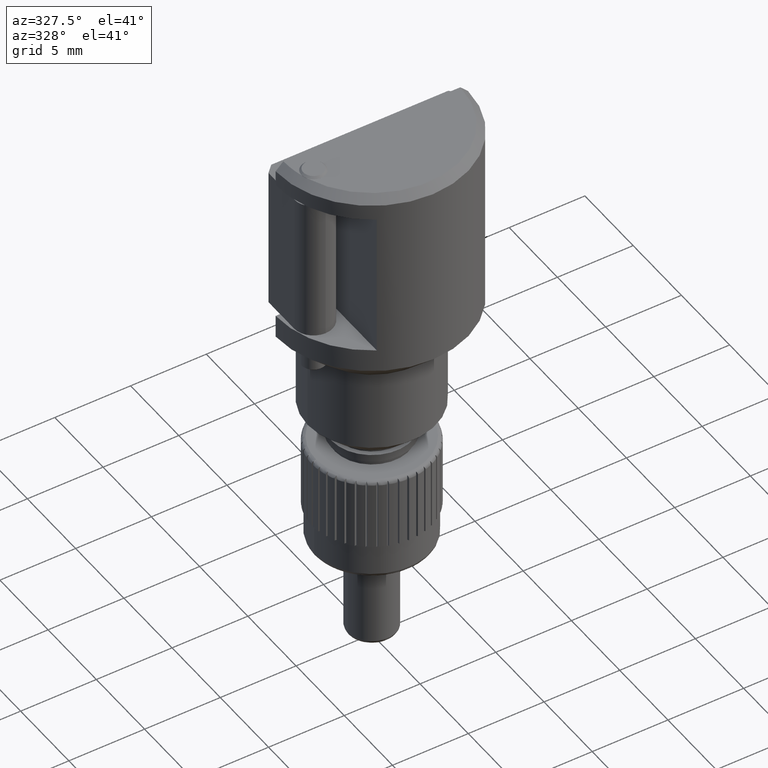
[diagram: clean part render]
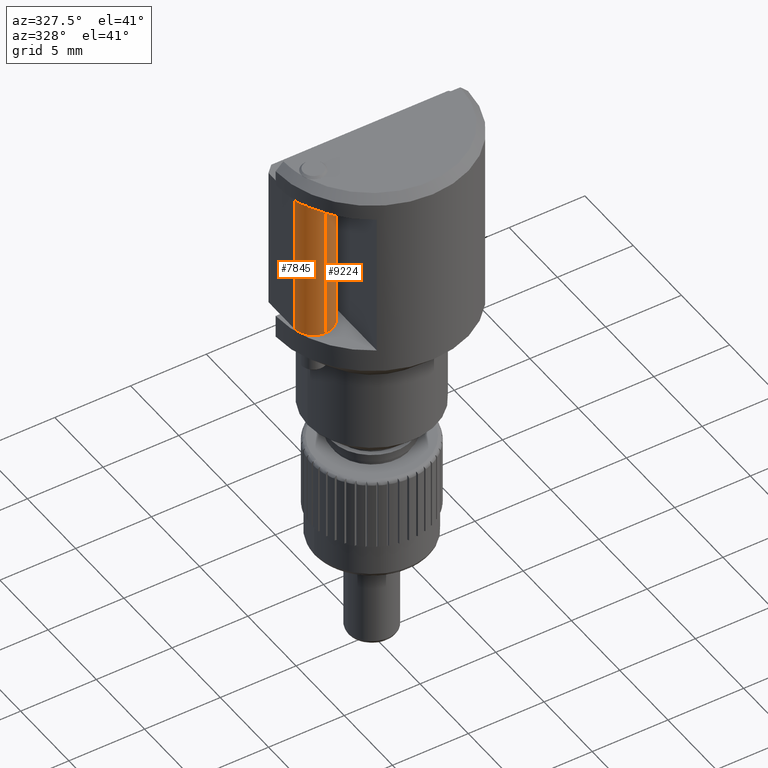
[diagram: same view with one multi-face feature highlighted, each face labeled with its STEP entity id]
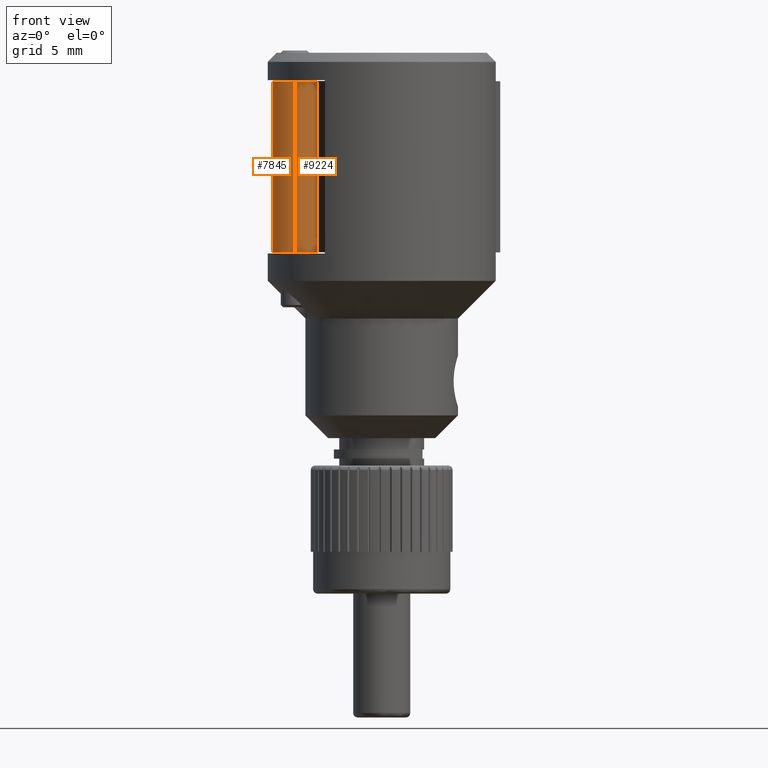
[diagram: same view with one multi-face feature highlighted, each face labeled with its STEP entity id]
A machine part, auxiliary view. The highlighted faces form ONE feature: a constant-radius fillet chain: 2 tangent blend faces with common blend radius 1.27 mm. The faces share edges in the B-rep.
A second angle (front view) of the same feature is appended — it is thin or edge-on in the first view.
Their STEP definitions:
[1] entity #9224 (Cylinder):
#1884 = ORIENTED_EDGE ( 'NONE', *, *, #6429, .F. ) ;
#1924 = EDGE_LOOP ( 'NONE', ( #1973, #1884, #4818, #6220 ) ) ;
#1973 = ORIENTED_EDGE ( 'NONE', *, *, #8939, .F. ) ;
#2120 = AXIS2_PLACEMENT_3D ( 'NONE', #6759, #5254, #2218 ) ;
#2174 = CYLINDRICAL_SURFACE ( 'NONE', #9515, 0.05000000000000001000 ) ;
#2218 = DIRECTION ( 'NONE',  ( -1.000000000000000000, 0.0000000000000000000, 0.0000000000000000000 ) ) ;
#2877 = LINE ( 'NONE', #4825, #4183 ) ;
#2979 = CARTESIAN_POINT ( 'NONE',  ( -0.1899999999999999700, -0.1099999999999999900, 0.6893110236220474400 ) ) ;
#3901 = CARTESIAN_POINT ( 'NONE',  ( -0.1399999999999999900, -0.05999999999999990800, 0.6893110236220474400 ) ) ;
#4127 = CARTESIAN_POINT ( 'NONE',  ( -0.1399999999999999900, -0.05999999999999990800, 0.3143110236220473800 ) ) ;
#4183 = VECTOR ( 'NONE', #7057, 39.37007874015748100 ) ;
#4441 = DIRECTION ( 'NONE',  ( -0.0000000000000000000, -0.0000000000000000000, 1.000000000000000000 ) ) ;
#4818 = ORIENTED_EDGE ( 'NONE', *, *, #5738, .F. ) ;
#4825 = CARTESIAN_POINT ( 'NONE',  ( -0.1399999999999999900, -0.05999999999999990800, 0.6893110236220474400 ) ) ;
#5254 = DIRECTION ( 'NONE',  ( -0.0000000000000000000, -0.0000000000000000000, 1.000000000000000000 ) ) ;
#5553 = AXIS2_PLACEMENT_3D ( 'NONE', #9485, #8753, #6359 ) ;
#5700 = CARTESIAN_POINT ( 'NONE',  ( -0.1899999999999999700, -0.05999999999999997700, 0.6893110236220474400 ) ) ;
#5738 = EDGE_CURVE ( 'NONE', #6929, #8855, #6919, .T. ) ;
#6009 = VERTEX_POINT ( 'NONE', #4127 ) ;
#6220 = ORIENTED_EDGE ( 'NONE', *, *, #7939, .F. ) ;
#6359 = DIRECTION ( 'NONE',  ( -1.000000000000000000, 0.0000000000000000000, 0.0000000000000000000 ) ) ;
#6429 = EDGE_CURVE ( 'NONE', #8855, #7857, #7823, .T. ) ;
#6460 = DIRECTION ( 'NONE',  ( 0.0000000000000000000, 0.0000000000000000000, -1.000000000000000000 ) ) ;
#6759 = CARTESIAN_POINT ( 'NONE',  ( -0.1899999999999999700, -0.05999999999999997700, 0.6893110236220474400 ) ) ;
#6919 = LINE ( 'NONE', #2979, #7385 ) ;
#6929 = VERTEX_POINT ( 'NONE', #7630 ) ;
#6935 = FACE_OUTER_BOUND ( 'NONE', #1924, .T. ) ;
#7057 = DIRECTION ( 'NONE',  ( 0.0000000000000000000, 0.0000000000000000000, -1.000000000000000000 ) ) ;
#7216 = DIRECTION ( 'NONE',  ( -1.000000000000000000, 0.0000000000000000000, 0.0000000000000000000 ) ) ;
#7385 = VECTOR ( 'NONE', #4441, 39.37007874015748100 ) ;
#7630 = CARTESIAN_POINT ( 'NONE',  ( -0.1899999999999999700, -0.1099999999999999900, 0.3143110236220473800 ) ) ;
#7823 = CIRCLE ( 'NONE', #2120, 0.05000000000000001000 ) ;
#7857 = VERTEX_POINT ( 'NONE', #3901 ) ;
#7909 = CIRCLE ( 'NONE', #5553, 0.05000000000000001000 ) ;
#7939 = EDGE_CURVE ( 'NONE', #6009, #6929, #7909, .T. ) ;
#8455 = CARTESIAN_POINT ( 'NONE',  ( -0.1899999999999999700, -0.1099999999999999900, 0.6893110236220474400 ) ) ;
#8753 = DIRECTION ( 'NONE',  ( 0.0000000000000000000, 0.0000000000000000000, -1.000000000000000000 ) ) ;
#8855 = VERTEX_POINT ( 'NONE', #8455 ) ;
#8939 = EDGE_CURVE ( 'NONE', #7857, #6009, #2877, .T. ) ;
#9224 = ADVANCED_FACE ( 'NONE', ( #6935 ), #2174, .T. ) ;
#9485 = CARTESIAN_POINT ( 'NONE',  ( -0.1899999999999999700, -0.05999999999999997700, 0.3143110236220473800 ) ) ;
#9515 = AXIS2_PLACEMENT_3D ( 'NONE', #5700, #6460, #7216 ) ;
[2] entity #7845 (Cylinder):
#175 = EDGE_CURVE ( 'NONE', #6929, #6110, #712, .T. ) ;
#485 = EDGE_CURVE ( 'NONE', #6110, #5731, #1094, .T. ) ;
#712 = CIRCLE ( 'NONE', #9248, 0.05000000000000001000 ) ;
#1048 = DIRECTION ( 'NONE',  ( -0.0000000000000000000, -0.0000000000000000000, 1.000000000000000000 ) ) ;
#1094 = LINE ( 'NONE', #9393, #4872 ) ;
#1366 = DIRECTION ( 'NONE',  ( 0.0000000000000000000, 0.0000000000000000000, -1.000000000000000000 ) ) ;
#1531 = AXIS2_PLACEMENT_3D ( 'NONE', #8634, #1048, #6380 ) ;
#1670 = DIRECTION ( 'NONE',  ( -0.0000000000000000000, 0.0000000000000000000, -1.000000000000000000 ) ) ;
#1695 = ORIENTED_EDGE ( 'NONE', *, *, #7094, .F. ) ;
#2021 = CARTESIAN_POINT ( 'NONE',  ( -0.1900000000000000300, -0.05999999999999997700, 0.3143110236220473800 ) ) ;
#2538 = EDGE_LOOP ( 'NONE', ( #1695, #8574, #5371, #9005 ) ) ;
#2617 = CARTESIAN_POINT ( 'NONE',  ( -0.2400000000000000500, -0.05999999999999997700, 0.3143110236220473800 ) ) ;
#2888 = FACE_OUTER_BOUND ( 'NONE', #2538, .T. ) ;
#2979 = CARTESIAN_POINT ( 'NONE',  ( -0.1899999999999999700, -0.1099999999999999900, 0.6893110236220474400 ) ) ;
#3702 = CARTESIAN_POINT ( 'NONE',  ( -0.2400000000000000500, -0.05999999999999997700, 0.6893110236220474400 ) ) ;
#4120 = AXIS2_PLACEMENT_3D ( 'NONE', #4677, #1670, #6276 ) ;
#4441 = DIRECTION ( 'NONE',  ( -0.0000000000000000000, -0.0000000000000000000, 1.000000000000000000 ) ) ;
#4677 = CARTESIAN_POINT ( 'NONE',  ( -0.1900000000000000300, -0.05999999999999997700, 0.6893110236220474400 ) ) ;
#4872 = VECTOR ( 'NONE', #8735, 39.37007874015748100 ) ;
#5371 = ORIENTED_EDGE ( 'NONE', *, *, #175, .F. ) ;
#5731 = VERTEX_POINT ( 'NONE', #3702 ) ;
#5738 = EDGE_CURVE ( 'NONE', #6929, #8855, #6919, .T. ) ;
#6110 = VERTEX_POINT ( 'NONE', #2617 ) ;
#6142 = CYLINDRICAL_SURFACE ( 'NONE', #4120, 0.05000000000000001000 ) ;
#6276 = DIRECTION ( 'NONE',  ( -1.000000000000000000, 0.0000000000000000000, 0.0000000000000000000 ) ) ;
#6366 = CIRCLE ( 'NONE', #1531, 0.05000000000000001000 ) ;
#6380 = DIRECTION ( 'NONE',  ( -1.000000000000000000, 0.0000000000000000000, 0.0000000000000000000 ) ) ;
#6919 = LINE ( 'NONE', #2979, #7385 ) ;
#6929 = VERTEX_POINT ( 'NONE', #7630 ) ;
#7094 = EDGE_CURVE ( 'NONE', #5731, #8855, #6366, .T. ) ;
#7385 = VECTOR ( 'NONE', #4441, 39.37007874015748100 ) ;
#7459 = DIRECTION ( 'NONE',  ( -1.000000000000000000, 0.0000000000000000000, 0.0000000000000000000 ) ) ;
#7630 = CARTESIAN_POINT ( 'NONE',  ( -0.1899999999999999700, -0.1099999999999999900, 0.3143110236220473800 ) ) ;
#7845 = ADVANCED_FACE ( 'NONE', ( #2888 ), #6142, .T. ) ;
#8455 = CARTESIAN_POINT ( 'NONE',  ( -0.1899999999999999700, -0.1099999999999999900, 0.6893110236220474400 ) ) ;
#8574 = ORIENTED_EDGE ( 'NONE', *, *, #485, .F. ) ;
#8634 = CARTESIAN_POINT ( 'NONE',  ( -0.1900000000000000300, -0.05999999999999997700, 0.6893110236220474400 ) ) ;
#8735 = DIRECTION ( 'NONE',  ( 0.0000000000000000000, -0.0000000000000000000, 1.000000000000000000 ) ) ;
#8855 = VERTEX_POINT ( 'NONE', #8455 ) ;
#9005 = ORIENTED_EDGE ( 'NONE', *, *, #5738, .T. ) ;
#9248 = AXIS2_PLACEMENT_3D ( 'NONE', #2021, #1366, #7459 ) ;
#9393 = CARTESIAN_POINT ( 'NONE',  ( -0.2400000000000000500, -0.05999999999999997700, 0.6893110236220474400 ) ) ;